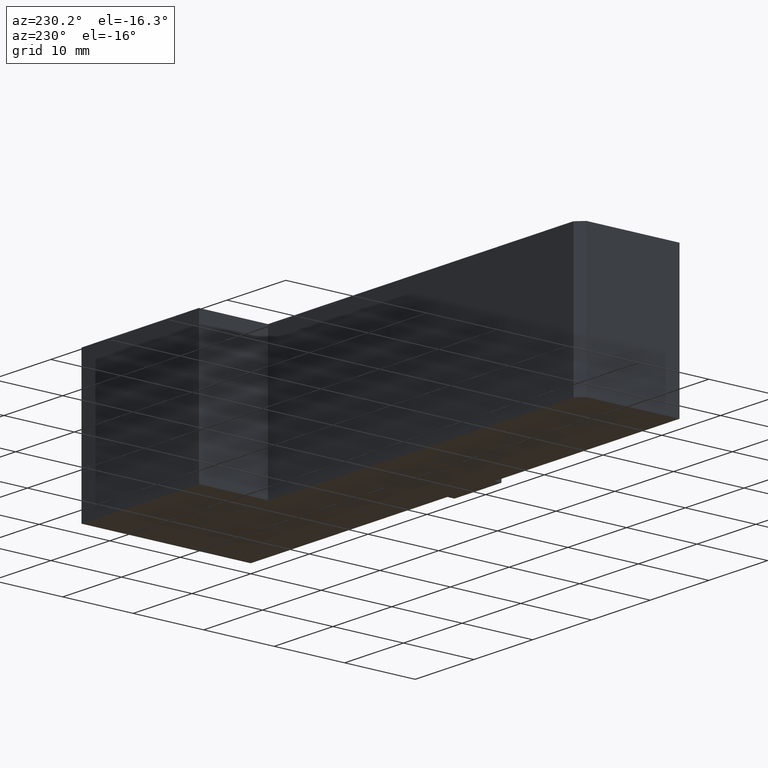
[diagram: clean part render]
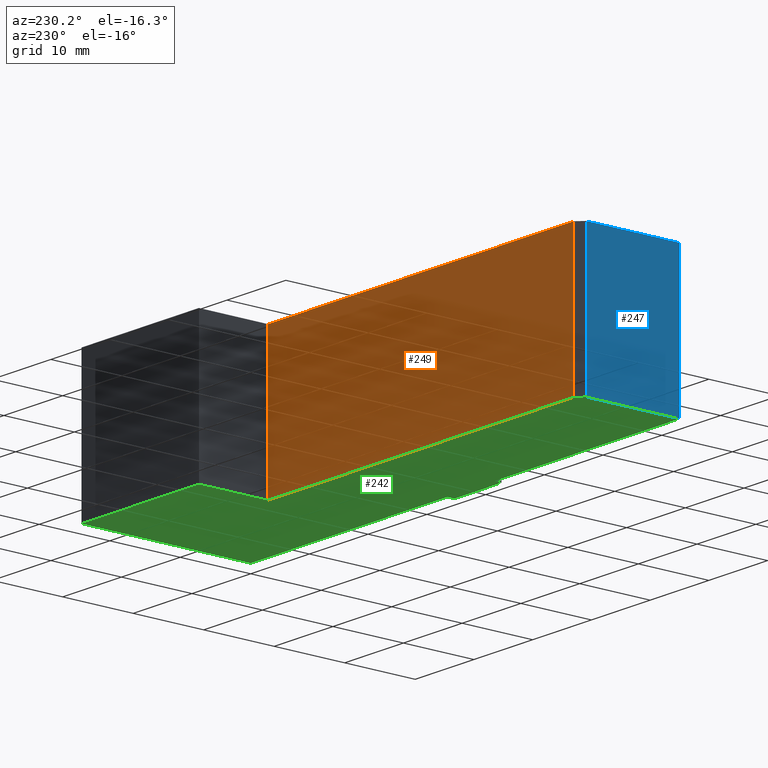
[diagram: same view with three faces highlighted in distinct colors, each labeled with its STEP entity id]
A machine part, auxiliary view with three faces highlighted in distinct colors.
Their STEP definitions:

[orange] entity #249 — the highlighted planar face has unit normal (-0, 1, 0).
#23=FACE_OUTER_BOUND('',#36,.T.);
#36=EDGE_LOOP('',(#198,#199,#200,#201));
#50=LINE('',#372,#83);
#65=LINE('',#401,#98);
#66=LINE('',#404,#99);
#67=LINE('',#405,#100);
#83=VECTOR('',#303,10.);
#98=VECTOR('',#330,10.);
#99=VECTOR('',#333,10.);
#100=VECTOR('',#334,10.);
#116=VERTEX_POINT('',#369);
#117=VERTEX_POINT('',#371);
#125=VERTEX_POINT('',#399);
#126=VERTEX_POINT('',#403);
#138=EDGE_CURVE('',#117,#116,#50,.T.);
#153=EDGE_CURVE('',#125,#116,#65,.T.);
#154=EDGE_CURVE('',#125,#126,#66,.T.);
#155=EDGE_CURVE('',#126,#117,#67,.T.);
#198=ORIENTED_EDGE('',*,*,#154,.T.);
#199=ORIENTED_EDGE('',*,*,#155,.T.);
#200=ORIENTED_EDGE('',*,*,#138,.T.);
#201=ORIENTED_EDGE('',*,*,#153,.F.);
#236=PLANE('',#285);
#249=ADVANCED_FACE('',(#23),#236,.T.);
#285=AXIS2_PLACEMENT_3D('',#402,#331,#332);
#303=DIRECTION('',(-1.,-2.56205313375036E-16,0.));
#330=DIRECTION('',(0.,0.,-1.));
#331=DIRECTION('center_axis',(-2.56205313375036E-16,1.,0.));
#332=DIRECTION('ref_axis',(0.,0.,1.));
#333=DIRECTION('',(1.,2.56205313375036E-16,0.));
#334=DIRECTION('',(0.,0.,-1.));
#369=CARTESIAN_POINT('',(-72.,14.2,-10.));
#371=CARTESIAN_POINT('',(-20.,14.2,-10.));
#372=CARTESIAN_POINT('',(-72.,14.2,-10.));
#399=CARTESIAN_POINT('',(-72.,14.2,10.));
#401=CARTESIAN_POINT('',(-72.,14.2,0.));
#402=CARTESIAN_POINT('Origin',(-72.,14.2,0.));
#403=CARTESIAN_POINT('',(-20.,14.2,10.));
#404=CARTESIAN_POINT('',(-72.,14.2,10.));
#405=CARTESIAN_POINT('',(-20.,14.2,0.));

[blue] entity #247 — the highlighted planar face has unit normal (-1, 0, 0).
#21=FACE_OUTER_BOUND('',#34,.T.);
#34=EDGE_LOOP('',(#190,#191,#192,#193));
#48=LINE('',#368,#81);
#61=LINE('',#393,#94);
#62=LINE('',#396,#95);
#63=LINE('',#397,#96);
#81=VECTOR('',#301,10.);
#94=VECTOR('',#322,10.);
#95=VECTOR('',#325,10.);
#96=VECTOR('',#326,10.);
#114=VERTEX_POINT('',#365);
#115=VERTEX_POINT('',#367);
#123=VERTEX_POINT('',#391);
#124=VERTEX_POINT('',#395);
#136=EDGE_CURVE('',#115,#114,#48,.T.);
#149=EDGE_CURVE('',#123,#114,#61,.T.);
#150=EDGE_CURVE('',#123,#124,#62,.T.);
#151=EDGE_CURVE('',#124,#115,#63,.T.);
#190=ORIENTED_EDGE('',*,*,#150,.T.);
#191=ORIENTED_EDGE('',*,*,#151,.T.);
#192=ORIENTED_EDGE('',*,*,#136,.T.);
#193=ORIENTED_EDGE('',*,*,#149,.F.);
#234=PLANE('',#283);
#247=ADVANCED_FACE('',(#21),#234,.T.);
#283=AXIS2_PLACEMENT_3D('',#394,#323,#324);
#301=DIRECTION('',(0.,-1.,0.));
#322=DIRECTION('',(0.,0.,-1.));
#323=DIRECTION('center_axis',(-1.,0.,0.));
#324=DIRECTION('ref_axis',(0.,0.,1.));
#325=DIRECTION('',(0.,1.,0.));
#326=DIRECTION('',(0.,0.,-1.));
#365=CARTESIAN_POINT('',(-73.,-2.75662793727719E-15,-10.));
#367=CARTESIAN_POINT('',(-73.,13.2,-10.));
#368=CARTESIAN_POINT('',(-73.,-2.75662793727719E-15,-10.));
#391=CARTESIAN_POINT('',(-73.,-2.75662793727719E-15,10.));
#393=CARTESIAN_POINT('',(-73.,-2.75662793727719E-15,0.));
#394=CARTESIAN_POINT('Origin',(-73.,-2.75662793727719E-15,0.));
#395=CARTESIAN_POINT('',(-73.,13.2,10.));
#396=CARTESIAN_POINT('',(-73.,-2.75662793727719E-15,10.));
#397=CARTESIAN_POINT('',(-73.,13.2,0.));

[green] entity #242 — the highlighted planar face has unit normal (0, 0, 1).
#16=FACE_OUTER_BOUND('',#29,.T.);
#29=EDGE_LOOP('',(#163,#164,#165,#166,#167,#168,#169,#170,#171,#172,#173));
#42=LINE('',#356,#75);
#43=LINE('',#358,#76);
#44=LINE('',#360,#77);
#45=LINE('',#362,#78);
#46=LINE('',#364,#79);
#47=LINE('',#366,#80);
#48=LINE('',#368,#81);
#49=LINE('',#370,#82);
#50=LINE('',#372,#83);
#51=LINE('',#374,#84);
#52=LINE('',#375,#85);
#75=VECTOR('',#295,10.);
#76=VECTOR('',#296,10.);
#77=VECTOR('',#297,10.);
#78=VECTOR('',#298,10.);
#79=VECTOR('',#299,10.);
#80=VECTOR('',#300,10.);
#81=VECTOR('',#301,10.);
#82=VECTOR('',#302,10.);
#83=VECTOR('',#303,10.);
#84=VECTOR('',#304,10.);
#85=VECTOR('',#305,10.);
#108=VERTEX_POINT('',#354);
#109=VERTEX_POINT('',#355);
#110=VERTEX_POINT('',#357);
#111=VERTEX_POINT('',#359);
#112=VERTEX_POINT('',#361);
#113=VERTEX_POINT('',#363);
#114=VERTEX_POINT('',#365);
#115=VERTEX_POINT('',#367);
#116=VERTEX_POINT('',#369);
#117=VERTEX_POINT('',#371);
#118=VERTEX_POINT('',#373);
#130=EDGE_CURVE('',#108,#109,#42,.T.);
#131=EDGE_CURVE('',#110,#108,#43,.T.);
#132=EDGE_CURVE('',#111,#110,#44,.T.);
#133=EDGE_CURVE('',#112,#111,#45,.T.);
#134=EDGE_CURVE('',#113,#112,#46,.T.);
#135=EDGE_CURVE('',#114,#113,#47,.T.);
#136=EDGE_CURVE('',#115,#114,#48,.T.);
#137=EDGE_CURVE('',#116,#115,#49,.T.);
#138=EDGE_CURVE('',#117,#116,#50,.T.);
#139=EDGE_CURVE('',#118,#117,#51,.T.);
#140=EDGE_CURVE('',#109,#118,#52,.T.);
#163=ORIENTED_EDGE('',*,*,#130,.F.);
#164=ORIENTED_EDGE('',*,*,#131,.F.);
#165=ORIENTED_EDGE('',*,*,#132,.F.);
#166=ORIENTED_EDGE('',*,*,#133,.F.);
#167=ORIENTED_EDGE('',*,*,#134,.F.);
#168=ORIENTED_EDGE('',*,*,#135,.F.);
#169=ORIENTED_EDGE('',*,*,#136,.F.);
#170=ORIENTED_EDGE('',*,*,#137,.F.);
#171=ORIENTED_EDGE('',*,*,#138,.F.);
#172=ORIENTED_EDGE('',*,*,#139,.F.);
#173=ORIENTED_EDGE('',*,*,#140,.F.);
#229=PLANE('',#278);
#242=ADVANCED_FACE('',(#16),#229,.F.);
#278=AXIS2_PLACEMENT_3D('',#353,#293,#294);
#293=DIRECTION('center_axis',(0.,0.,1.));
#294=DIRECTION('ref_axis',(1.,0.,0.));
#295=DIRECTION('',(-2.77555756156289E-16,1.,0.));
#296=DIRECTION('',(1.,1.33599599045378E-16,0.));
#297=DIRECTION('',(0.,1.,0.));
#298=DIRECTION('',(1.,1.04083408558608E-16,0.));
#299=DIRECTION('',(0.,-1.,0.));
#300=DIRECTION('',(1.,1.22757173393725E-16,0.));
#301=DIRECTION('',(0.,-1.,0.));
#302=DIRECTION('',(-0.707106781186549,-0.707106781186546,0.));
#303=DIRECTION('',(-1.,-2.56205313375036E-16,0.));
#304=DIRECTION('',(4.53152254949043E-16,-1.,0.));
#305=DIRECTION('',(-1.,-2.22044604925031E-16,0.));
#353=CARTESIAN_POINT('Origin',(-33.7418162326635,9.16552943183342,-10.));
#354=CARTESIAN_POINT('',(2.22044604925031E-15,2.22044604925031E-15,-10.));
#355=CARTESIAN_POINT('',(-4.44089209850063E-15,24.,-10.));
#356=CARTESIAN_POINT('',(-4.44089209850063E-15,24.,-10.));
#357=CARTESIAN_POINT('',(-33.5,-2.25514051876985E-15,-10.));
#358=CARTESIAN_POINT('',(2.22044604925031E-15,2.22044604925031E-15,-10.));
#359=CARTESIAN_POINT('',(-33.5,-1.,-10.));
#360=CARTESIAN_POINT('',(-33.5,-2.25514051876985E-15,-10.));
#361=CARTESIAN_POINT('',(-41.5,-1.,-10.));
#362=CARTESIAN_POINT('',(-33.5,-1.,-10.));
#363=CARTESIAN_POINT('',(-41.5,1.11022302462516E-15,-10.));
#364=CARTESIAN_POINT('',(-41.5,-1.,-10.));
#365=CARTESIAN_POINT('',(-73.,-2.75662793727719E-15,-10.));
#366=CARTESIAN_POINT('',(-41.5,1.11022302462516E-15,-10.));
#367=CARTESIAN_POINT('',(-73.,13.2,-10.));
#368=CARTESIAN_POINT('',(-73.,-2.75662793727719E-15,-10.));
#369=CARTESIAN_POINT('',(-72.,14.2,-10.));
#370=CARTESIAN_POINT('',(-73.,13.2,-10.));
#371=CARTESIAN_POINT('',(-20.,14.2,-10.));
#372=CARTESIAN_POINT('',(-72.,14.2,-10.));
#373=CARTESIAN_POINT('',(-20.,24.,-10.));
#374=CARTESIAN_POINT('',(-20.,14.2,-10.));
#375=CARTESIAN_POINT('',(-20.,24.,-10.));